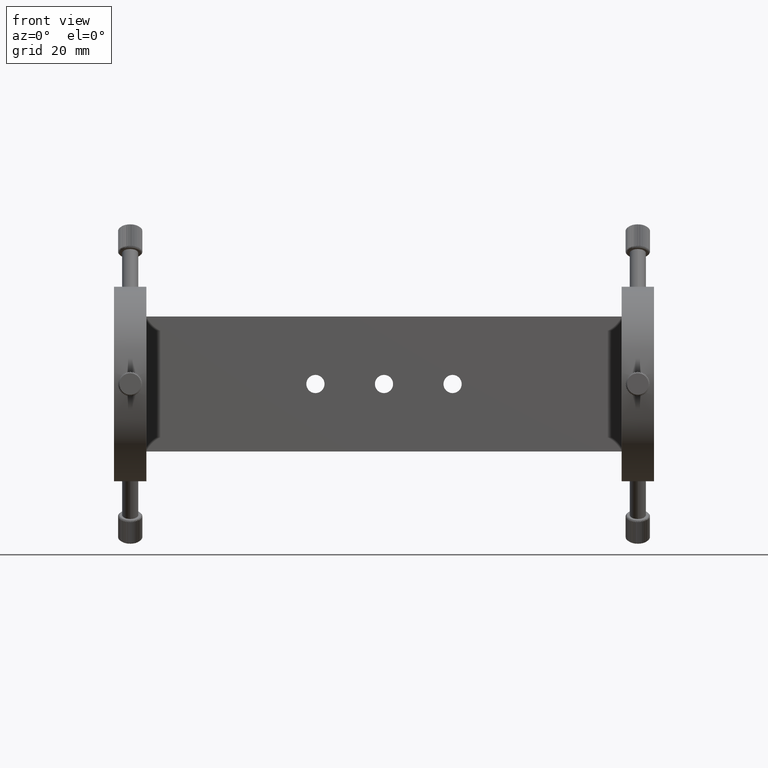
[diagram: clean part render]
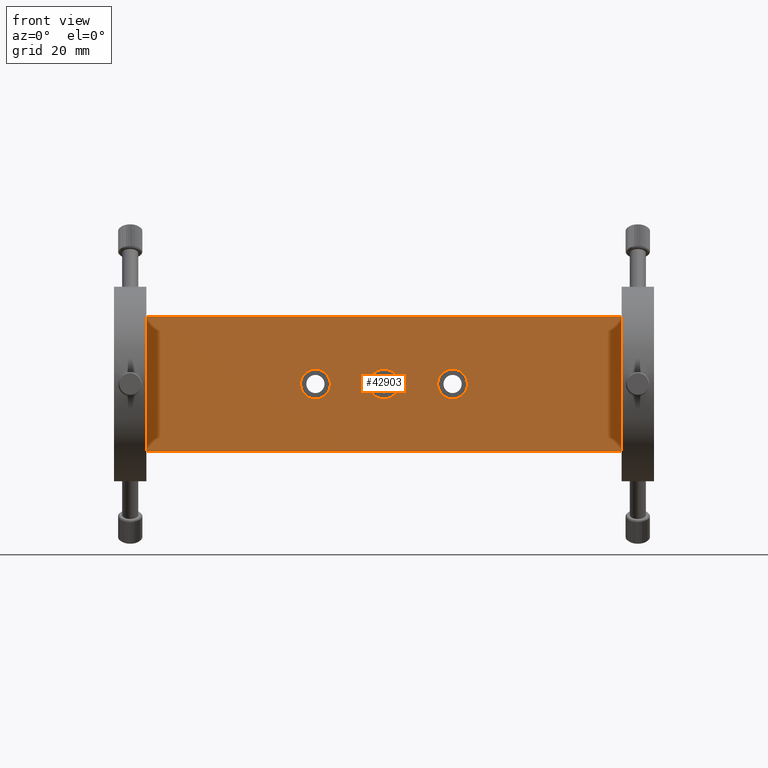
[diagram: same view with one face highlighted and labeled with its STEP entity id]
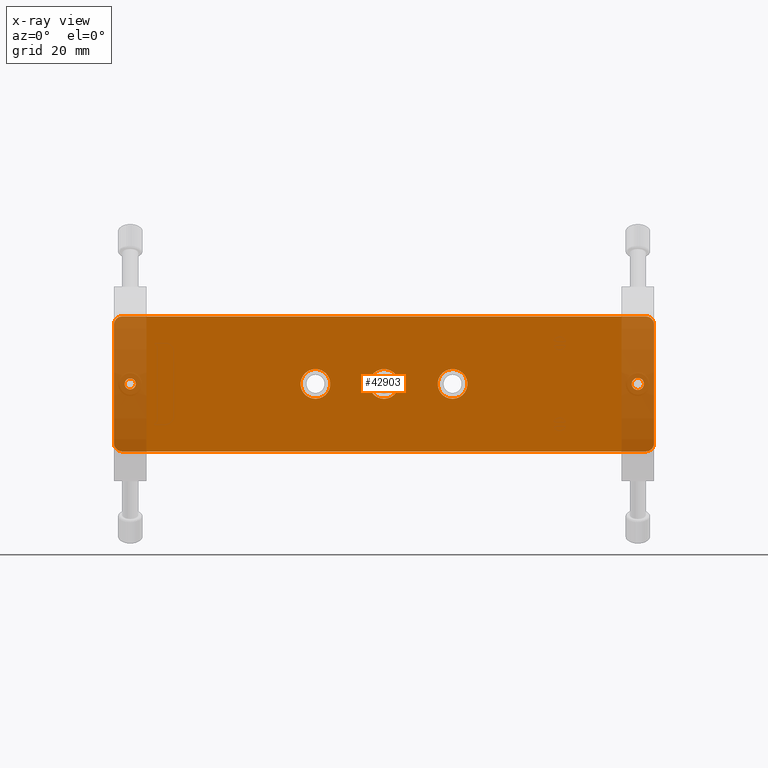
[diagram: x-ray of the same camera — body ghosted, the highlighted face saturated]
A machine part, front view. The second image highlights one B-rep face of the part: STEP entity #42903.
The next image is the same camera in x-ray: the body ghosted, the highlighted face saturated — about 12% of this face is hidden behind the body in this view.
In plain terms, the highlighted planar face has unit normal (0, 1, 0).
Its self-contained STEP definition (entity closure, byte-faithful):
#129 = VERTEX_POINT ( 'NONE', #13344 ) ;
#417 = EDGE_CURVE ( 'NONE', #18775, #3121, #31583, .T. ) ;
#541 = EDGE_CURVE ( 'NONE', #29940, #32162, #12160, .T. ) ;
#590 = DIRECTION ( 'NONE',  ( 0.0000000000000000000, 0.0000000000000000000, 1.000000000000000000 ) ) ;
#612 = EDGE_CURVE ( 'NONE', #45090, #34979, #47529, .T. ) ;
#922 = EDGE_LOOP ( 'NONE', ( #13390, #11044 ) ) ;
#1386 = FACE_BOUND ( 'NONE', #45956, .T. ) ;
#1561 = EDGE_CURVE ( 'NONE', #25542, #19492, #3852, .T. ) ;
#1952 = DIRECTION ( 'NONE',  ( 0.0000000000000000000, 0.0000000000000000000, 1.000000000000000000 ) ) ;
#2241 = DIRECTION ( 'NONE',  ( 0.0000000000000000000, 1.000000000000000000, 0.0000000000000000000 ) ) ;
#2699 = CARTESIAN_POINT ( 'NONE',  ( -3.633060853769243300, -17.41295791704509500, 0.0000000000000000000 ) ) ;
#2858 = CIRCLE ( 'NONE', #27381, 5.499999999999998200 ) ;
#2895 = DIRECTION ( 'NONE',  ( 0.0000000000000000000, 0.0000000000000000000, -1.000000000000000000 ) ) ;
#3107 = AXIS2_PLACEMENT_3D ( 'NONE', #33328, #10250, #25923 ) ;
#3121 = VERTEX_POINT ( 'NONE', #29733 ) ;
#3226 = VECTOR ( 'NONE', #43815, 1000.000000000000000 ) ;
#3234 = VECTOR ( 'NONE', #18939, 1000.000000000000000 ) ;
#3390 = VERTEX_POINT ( 'NONE', #39566 ) ;
#3658 = DIRECTION ( 'NONE',  ( 0.0000000000000000000, 0.0000000000000000000, 1.000000000000000000 ) ) ;
#3843 = EDGE_CURVE ( 'NONE', #19492, #18775, #16121, .T. ) ;
#3852 = LINE ( 'NONE', #29524, #3234 ) ;
#6117 = EDGE_CURVE ( 'NONE', #32132, #19111, #42514, .T. ) ;
#6554 = CARTESIAN_POINT ( 'NONE',  ( -103.6330608537691400, -17.41295791704509500, 22.00000000000000000 ) ) ;
#6756 = LINE ( 'NONE', #36075, #3226 ) ;
#7105 = DIRECTION ( 'NONE',  ( 0.0000000000000000000, 1.000000000000000000, 0.0000000000000000000 ) ) ;
#7967 = CARTESIAN_POINT ( 'NONE',  ( 90.36693914623076300, -17.41295791704509500, 0.0000000000000000000 ) ) ;
#8137 = ORIENTED_EDGE ( 'NONE', *, *, #15994, .F. ) ;
#8673 = VERTEX_POINT ( 'NONE', #46887 ) ;
#8802 = AXIS2_PLACEMENT_3D ( 'NONE', #2699, #48147, #32840 ) ;
#8813 = CARTESIAN_POINT ( 'NONE',  ( -100.6330608537691800, -17.41295791704509500, 22.00000000000000000 ) ) ;
#9705 = DIRECTION ( 'NONE',  ( -0.0000000000000000000, 1.000000000000000000, -0.0000000000000000000 ) ) ;
#10071 = CIRCLE ( 'NONE', #18451, 2.999999999999981800 ) ;
#10250 = DIRECTION ( 'NONE',  ( -0.0000000000000000000, 1.000000000000000000, -0.0000000000000000000 ) ) ;
#10307 = ORIENTED_EDGE ( 'NONE', *, *, #1561, .F. ) ;
#10872 = ORIENTED_EDGE ( 'NONE', *, *, #28880, .T. ) ;
#10966 = CARTESIAN_POINT ( 'NONE',  ( 21.76693914623075400, -17.41295791704509500, 0.0000000000000000000 ) ) ;
#11044 = ORIENTED_EDGE ( 'NONE', *, *, #39908, .T. ) ;
#11468 = VERTEX_POINT ( 'NONE', #19024 ) ;
#11938 = PLANE ( 'NONE',  #39713 ) ;
#11986 = FACE_BOUND ( 'NONE', #48011, .T. ) ;
#12160 = CIRCLE ( 'NONE', #8802, 5.499999999999998200 ) ;
#13344 = CARTESIAN_POINT ( 'NONE',  ( 21.76693914623075400, -17.41295791704509500, 5.499999999999998200 ) ) ;
#13390 = ORIENTED_EDGE ( 'NONE', *, *, #6117, .T. ) ;
#13456 = CIRCLE ( 'NONE', #45438, 5.499999999999998200 ) ;
#14133 = CARTESIAN_POINT ( 'NONE',  ( -3.633060853769242400, -17.41295791704509500, -5.499999999999998200 ) ) ;
#14662 = DIRECTION ( 'NONE',  ( 0.0000000000000000000, 0.0000000000000000000, 1.000000000000000000 ) ) ;
#14734 = DIRECTION ( 'NONE',  ( -0.0000000000000000000, 1.000000000000000000, -0.0000000000000000000 ) ) ;
#15075 = VECTOR ( 'NONE', #2895, 1000.000000000000000 ) ;
#15247 = AXIS2_PLACEMENT_3D ( 'NONE', #38325, #38175, #45587 ) ;
#15366 = CARTESIAN_POINT ( 'NONE',  ( -103.6330608537691700, -17.41295791704509500, -22.00000000000000000 ) ) ;
#15994 = EDGE_CURVE ( 'NONE', #45129, #25542, #10071, .T. ) ;
#16121 = CIRCLE ( 'NONE', #45826, 2.999999999999981800 ) ;
#16294 = CIRCLE ( 'NONE', #37828, 2.250000000000001800 ) ;
#16483 = EDGE_CURVE ( 'NONE', #8673, #19266, #40698, .T. ) ;
#16560 = DIRECTION ( 'NONE',  ( 0.0000000000000000000, 1.000000000000000000, 0.0000000000000000000 ) ) ;
#16637 = EDGE_CURVE ( 'NONE', #3121, #3390, #38336, .T. ) ;
#16817 = CARTESIAN_POINT ( 'NONE',  ( 93.36693914623069200, -17.41295791704509500, 25.00000000000000000 ) ) ;
#16949 = AXIS2_PLACEMENT_3D ( 'NONE', #24498, #16560, #1952 ) ;
#17567 = DIRECTION ( 'NONE',  ( 0.0000000000000000000, 0.0000000000000000000, 1.000000000000000000 ) ) ;
#17591 = CARTESIAN_POINT ( 'NONE',  ( -29.03306085376924300, -17.41295791704509500, 0.0000000000000000000 ) ) ;
#17634 = DIRECTION ( 'NONE',  ( 0.0000000000000000000, 0.0000000000000000000, 1.000000000000000000 ) ) ;
#17981 = CARTESIAN_POINT ( 'NONE',  ( -97.63306085376923700, -17.41295791704509500, 0.0000000000000000000 ) ) ;
#18290 = EDGE_CURVE ( 'NONE', #11468, #129, #13456, .T. ) ;
#18451 = AXIS2_PLACEMENT_3D ( 'NONE', #36362, #36186, #21519 ) ;
#18775 = VERTEX_POINT ( 'NONE', #34586 ) ;
#18939 = DIRECTION ( 'NONE',  ( 1.000000000000000000, 0.0000000000000000000, 0.0000000000000000000 ) ) ;
#19024 = CARTESIAN_POINT ( 'NONE',  ( 21.76693914623075400, -17.41295791704509500, -5.499999999999998200 ) ) ;
#19111 = VERTEX_POINT ( 'NONE', #22483 ) ;
#19266 = VERTEX_POINT ( 'NONE', #15366 ) ;
#19492 = VERTEX_POINT ( 'NONE', #16817 ) ;
#19501 = VERTEX_POINT ( 'NONE', #35793 ) ;
#20471 = ORIENTED_EDGE ( 'NONE', *, *, #16483, .F. ) ;
#20684 = ORIENTED_EDGE ( 'NONE', *, *, #612, .T. ) ;
#20748 = DIRECTION ( 'NONE',  ( 0.0000000000000000000, 0.0000000000000000000, 1.000000000000000000 ) ) ;
#21519 = DIRECTION ( 'NONE',  ( 0.0000000000000000000, 0.0000000000000000000, 1.000000000000000000 ) ) ;
#21791 = EDGE_CURVE ( 'NONE', #19266, #45129, #46640, .T. ) ;
#22483 = CARTESIAN_POINT ( 'NONE',  ( -97.63306085376923700, -17.41295791704509500, -2.049999999999996300 ) ) ;
#22598 = AXIS2_PLACEMENT_3D ( 'NONE', #48605, #7105, #14662 ) ;
#22794 = EDGE_CURVE ( 'NONE', #3390, #8673, #6756, .T. ) ;
#23303 = ORIENTED_EDGE ( 'NONE', *, *, #30459, .T. ) ;
#23838 = CARTESIAN_POINT ( 'NONE',  ( -3.633060853769243300, -17.41295791704509500, 5.499999999999998200 ) ) ;
#24466 = ORIENTED_EDGE ( 'NONE', *, *, #22794, .F. ) ;
#24498 = CARTESIAN_POINT ( 'NONE',  ( 90.36693914623076300, -17.41295791704509500, 0.0000000000000000000 ) ) ;
#24746 = CARTESIAN_POINT ( 'NONE',  ( 90.36693914623076300, -17.41295791704509500, 2.250000000000001800 ) ) ;
#25482 = CARTESIAN_POINT ( 'NONE',  ( 96.36693914623064900, -17.41295791704509500, 22.00000000000000000 ) ) ;
#25542 = VERTEX_POINT ( 'NONE', #29884 ) ;
#25766 = ORIENTED_EDGE ( 'NONE', *, *, #21791, .F. ) ;
#25831 = EDGE_LOOP ( 'NONE', ( #10872, #28779 ) ) ;
#25923 = DIRECTION ( 'NONE',  ( 0.0000000000000000000, 0.0000000000000000000, 1.000000000000000000 ) ) ;
#25995 = AXIS2_PLACEMENT_3D ( 'NONE', #44291, #37027, #17567 ) ;
#26029 = VECTOR ( 'NONE', #29730, 1000.000000000000000 ) ;
#26258 = DIRECTION ( 'NONE',  ( 0.0000000000000000000, 1.000000000000000000, 0.0000000000000000000 ) ) ;
#27381 = AXIS2_PLACEMENT_3D ( 'NONE', #10966, #14734, #48520 ) ;
#27597 = DIRECTION ( 'NONE',  ( 0.0000000000000000000, 1.000000000000000000, 0.0000000000000000000 ) ) ;
#28413 = ORIENTED_EDGE ( 'NONE', *, *, #32410, .T. ) ;
#28631 = CIRCLE ( 'NONE', #47931, 5.499999999999998200 ) ;
#28779 = ORIENTED_EDGE ( 'NONE', *, *, #18290, .T. ) ;
#28814 = CARTESIAN_POINT ( 'NONE',  ( -29.03306085376924300, -17.41295791704509500, 5.499999999999998200 ) ) ;
#28880 = EDGE_CURVE ( 'NONE', #129, #11468, #2858, .T. ) ;
#29145 = ORIENTED_EDGE ( 'NONE', *, *, #37368, .T. ) ;
#29509 = ORIENTED_EDGE ( 'NONE', *, *, #3843, .F. ) ;
#29524 = CARTESIAN_POINT ( 'NONE',  ( -100.6330608537691800, -17.41295791704509500, 25.00000000000000000 ) ) ;
#29730 = DIRECTION ( 'NONE',  ( -0.0000000000000000000, -0.0000000000000000000, 1.000000000000000000 ) ) ;
#29733 = CARTESIAN_POINT ( 'NONE',  ( 96.36693914623064900, -17.41295791704509500, -22.00000000000000000 ) ) ;
#29884 = CARTESIAN_POINT ( 'NONE',  ( -100.6330608537691800, -17.41295791704509500, 25.00000000000000000 ) ) ;
#29940 = VERTEX_POINT ( 'NONE', #23838 ) ;
#30126 = DIRECTION ( 'NONE',  ( -0.0000000000000000000, 1.000000000000000000, -0.0000000000000000000 ) ) ;
#30459 = EDGE_CURVE ( 'NONE', #19501, #41890, #16294, .T. ) ;
#30894 = DIRECTION ( 'NONE',  ( 0.0000000000000000000, -0.0000000000000000000, 1.000000000000000000 ) ) ;
#31416 = FACE_BOUND ( 'NONE', #25831, .T. ) ;
#31583 = LINE ( 'NONE', #25482, #15075 ) ;
#31966 = EDGE_CURVE ( 'NONE', #34979, #45090, #28631, .T. ) ;
#32026 = FACE_BOUND ( 'NONE', #39840, .T. ) ;
#32132 = VERTEX_POINT ( 'NONE', #44163 ) ;
#32162 = VERTEX_POINT ( 'NONE', #14133 ) ;
#32365 = DIRECTION ( 'NONE',  ( 0.0000000000000000000, 0.0000000000000000000, 1.000000000000000000 ) ) ;
#32410 = EDGE_CURVE ( 'NONE', #41890, #19501, #33337, .T. ) ;
#32840 = DIRECTION ( 'NONE',  ( 0.0000000000000000000, 0.0000000000000000000, 1.000000000000000000 ) ) ;
#33198 = CARTESIAN_POINT ( 'NONE',  ( -103.6330608537691400, -17.41295791704509500, 22.00000000000000000 ) ) ;
#33324 = DIRECTION ( 'NONE',  ( 0.0000000000000000000, 1.000000000000000000, 0.0000000000000000000 ) ) ;
#33328 = CARTESIAN_POINT ( 'NONE',  ( -29.03306085376924300, -17.41295791704509500, 0.0000000000000000000 ) ) ;
#33337 = CIRCLE ( 'NONE', #16949, 2.250000000000001800 ) ;
#34160 = ORIENTED_EDGE ( 'NONE', *, *, #541, .T. ) ;
#34586 = CARTESIAN_POINT ( 'NONE',  ( 96.36693914623067800, -17.41295791704509500, 22.00000000000000000 ) ) ;
#34620 = AXIS2_PLACEMENT_3D ( 'NONE', #44364, #33324, #17634 ) ;
#34979 = VERTEX_POINT ( 'NONE', #37750 ) ;
#35532 = AXIS2_PLACEMENT_3D ( 'NONE', #17981, #2241, #32365 ) ;
#35793 = CARTESIAN_POINT ( 'NONE',  ( 90.36693914623076300, -17.41295791704509500, -2.250000000000001800 ) ) ;
#36075 = CARTESIAN_POINT ( 'NONE',  ( -100.6330608537691800, -17.41295791704509500, -25.00000000000000000 ) ) ;
#36186 = DIRECTION ( 'NONE',  ( 0.0000000000000000000, 1.000000000000000000, 0.0000000000000000000 ) ) ;
#36362 = CARTESIAN_POINT ( 'NONE',  ( -100.6330608537691800, -17.41295791704509500, 22.00000000000000000 ) ) ;
#36996 = EDGE_LOOP ( 'NONE', ( #8137, #25766, #20471, #24466, #45006, #45748, #29509, #10307 ) ) ;
#37027 = DIRECTION ( 'NONE',  ( 0.0000000000000000000, 1.000000000000000000, 0.0000000000000000000 ) ) ;
#37368 = EDGE_CURVE ( 'NONE', #32162, #29940, #42891, .T. ) ;
#37567 = ORIENTED_EDGE ( 'NONE', *, *, #31966, .T. ) ;
#37750 = CARTESIAN_POINT ( 'NONE',  ( -29.03306085376924300, -17.41295791704509500, -5.499999999999998200 ) ) ;
#37828 = AXIS2_PLACEMENT_3D ( 'NONE', #7967, #38764, #590 ) ;
#38175 = DIRECTION ( 'NONE',  ( -0.0000000000000000000, 1.000000000000000000, -0.0000000000000000000 ) ) ;
#38325 = CARTESIAN_POINT ( 'NONE',  ( -3.633060853769243300, -17.41295791704509500, 0.0000000000000000000 ) ) ;
#38336 = CIRCLE ( 'NONE', #22598, 2.999999999999981800 ) ;
#38764 = DIRECTION ( 'NONE',  ( 0.0000000000000000000, 1.000000000000000000, 0.0000000000000000000 ) ) ;
#39566 = CARTESIAN_POINT ( 'NONE',  ( 93.36693914623069200, -17.41295791704509500, -24.99999999999998200 ) ) ;
#39713 = AXIS2_PLACEMENT_3D ( 'NONE', #8813, #27597, #30894 ) ;
#39840 = EDGE_LOOP ( 'NONE', ( #34160, #29145 ) ) ;
#39908 = EDGE_CURVE ( 'NONE', #19111, #32132, #40391, .T. ) ;
#40391 = CIRCLE ( 'NONE', #35532, 2.049999999999996300 ) ;
#40698 = CIRCLE ( 'NONE', #34620, 2.999999999999981800 ) ;
#40877 = FACE_BOUND ( 'NONE', #922, .T. ) ;
#41803 = CARTESIAN_POINT ( 'NONE',  ( 21.76693914623075400, -17.41295791704509500, 0.0000000000000000000 ) ) ;
#41890 = VERTEX_POINT ( 'NONE', #24746 ) ;
#42514 = CIRCLE ( 'NONE', #25995, 2.049999999999996300 ) ;
#42891 = CIRCLE ( 'NONE', #15247, 5.499999999999998200 ) ;
#42903 = ADVANCED_FACE ( 'NONE', ( #11986, #32026, #31416, #40877, #1386, #46172 ), #11938, .F. ) ;
#43815 = DIRECTION ( 'NONE',  ( -1.000000000000000000, -0.0000000000000000000, -0.0000000000000000000 ) ) ;
#44163 = CARTESIAN_POINT ( 'NONE',  ( -97.63306085376923700, -17.41295791704509500, 2.049999999999996300 ) ) ;
#44291 = CARTESIAN_POINT ( 'NONE',  ( -97.63306085376923700, -17.41295791704509500, 0.0000000000000000000 ) ) ;
#44364 = CARTESIAN_POINT ( 'NONE',  ( -100.6330608537691800, -17.41295791704509500, -22.00000000000000000 ) ) ;
#45006 = ORIENTED_EDGE ( 'NONE', *, *, #16637, .F. ) ;
#45090 = VERTEX_POINT ( 'NONE', #28814 ) ;
#45129 = VERTEX_POINT ( 'NONE', #6554 ) ;
#45438 = AXIS2_PLACEMENT_3D ( 'NONE', #41803, #30126, #45450 ) ;
#45450 = DIRECTION ( 'NONE',  ( 0.0000000000000000000, 0.0000000000000000000, 1.000000000000000000 ) ) ;
#45587 = DIRECTION ( 'NONE',  ( 0.0000000000000000000, 0.0000000000000000000, 1.000000000000000000 ) ) ;
#45748 = ORIENTED_EDGE ( 'NONE', *, *, #417, .F. ) ;
#45826 = AXIS2_PLACEMENT_3D ( 'NONE', #47508, #26258, #3658 ) ;
#45956 = EDGE_LOOP ( 'NONE', ( #28413, #23303 ) ) ;
#46172 = FACE_OUTER_BOUND ( 'NONE', #36996, .T. ) ;
#46640 = LINE ( 'NONE', #33198, #26029 ) ;
#46887 = CARTESIAN_POINT ( 'NONE',  ( -100.6330608537691800, -17.41295791704509500, -25.00000000000000000 ) ) ;
#47508 = CARTESIAN_POINT ( 'NONE',  ( 93.36693914623069200, -17.41295791704509500, 22.00000000000000000 ) ) ;
#47529 = CIRCLE ( 'NONE', #3107, 5.499999999999998200 ) ;
#47931 = AXIS2_PLACEMENT_3D ( 'NONE', #17591, #9705, #20748 ) ;
#48011 = EDGE_LOOP ( 'NONE', ( #20684, #37567 ) ) ;
#48147 = DIRECTION ( 'NONE',  ( -0.0000000000000000000, 1.000000000000000000, -0.0000000000000000000 ) ) ;
#48520 = DIRECTION ( 'NONE',  ( 0.0000000000000000000, 0.0000000000000000000, 1.000000000000000000 ) ) ;
#48605 = CARTESIAN_POINT ( 'NONE',  ( 93.36693914623069200, -17.41295791704509500, -22.00000000000000000 ) ) ;